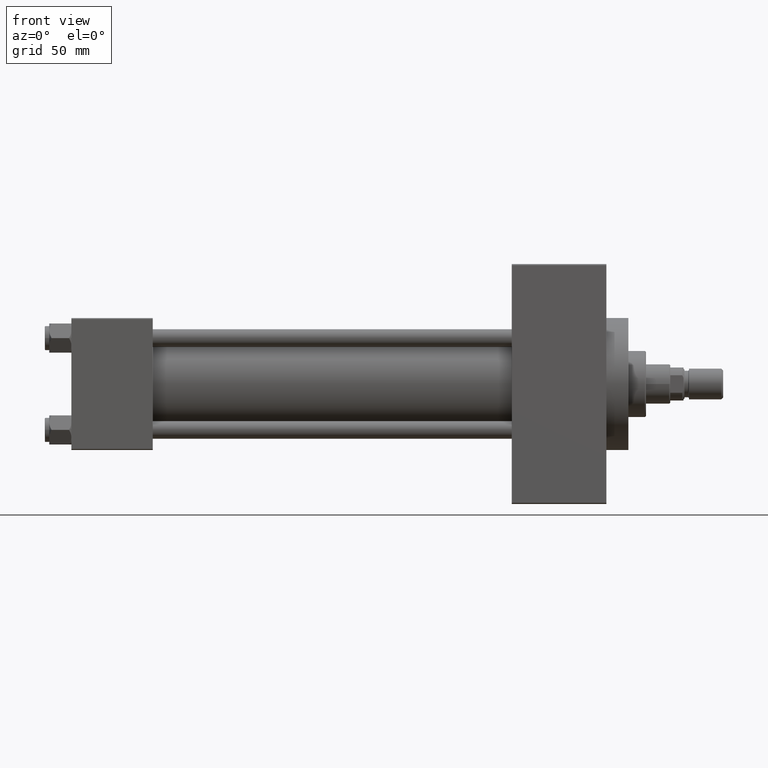
[diagram: clean part render]
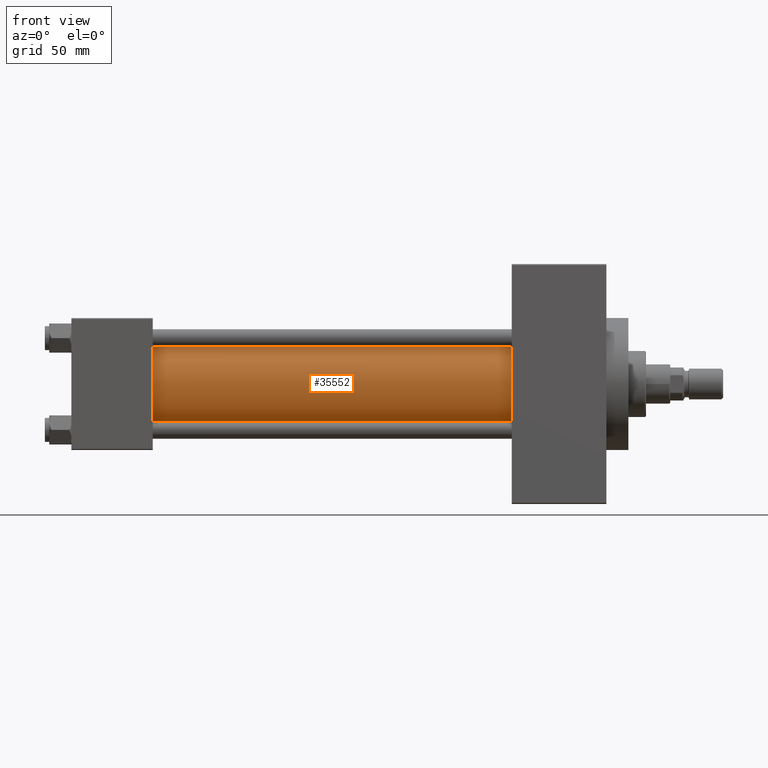
[diagram: same view with one face highlighted and labeled with its STEP entity id]
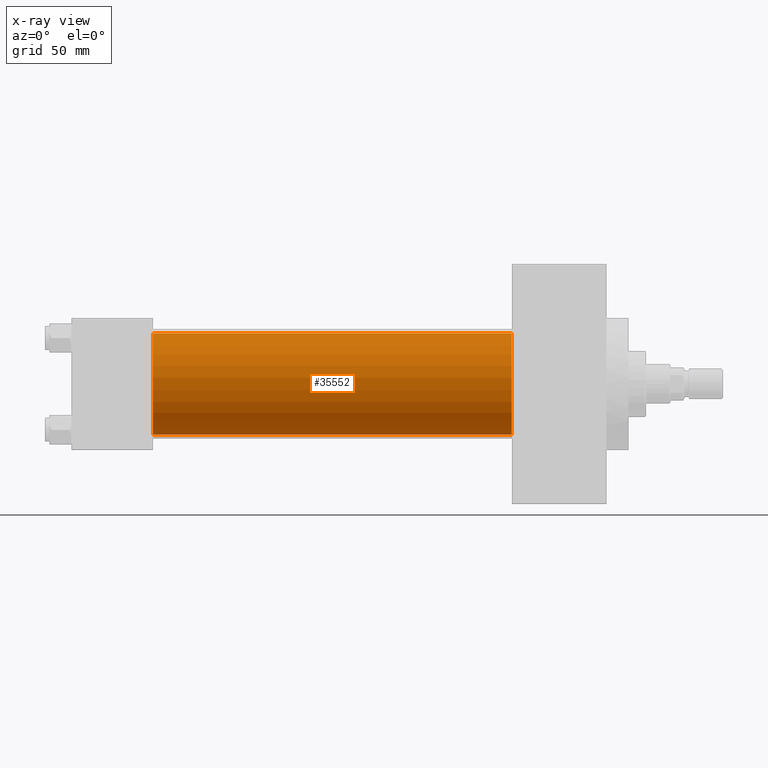
[diagram: x-ray of the same camera — body ghosted, the highlighted face saturated]
A machine part, front view. The second image highlights one B-rep face of the part: STEP entity #35552.
The next image is the same camera in x-ray: the body ghosted, the highlighted face saturated — about 0% of this face is hidden behind the body in this view.
In plain terms, the highlighted cylindrical surface (partial cylindrical patch) has radius 23 mm, axis along (-1, -0, -0).
Its self-contained STEP definition (entity closure, byte-faithful):
#3420 = CARTESIAN_POINT ( 'NONE',  ( 37.00000000000000711, -2.602085213965210642E-15, 0.000000000000000000 ) ) ;
#3929 = VERTEX_POINT ( 'NONE', #35302 ) ;
#4826 = EDGE_CURVE ( 'NONE', #33932, #15929, #13238, .T. ) ;
#5078 = DIRECTION ( 'NONE',  ( 0.000000000000000000, 0.000000000000000000, -1.000000000000000000 ) ) ;
#5286 = ORIENTED_EDGE ( 'NONE', *, *, #30888, .T. ) ;
#5329 = CARTESIAN_POINT ( 'NONE',  ( 200.0000000000000000, 2.146024240737016609E-16, -23.00000000000000000 ) ) ;
#5658 = CIRCLE ( 'NONE', #32748, 23.00000000000000000 ) ;
#6043 = EDGE_CURVE ( 'NONE', #3929, #15929, #44828, .T. ) ;
#6731 = AXIS2_PLACEMENT_3D ( 'NONE', #11680, #18960, #30324 ) ;
#8963 = CARTESIAN_POINT ( 'NONE',  ( 200.0000000000000000, -2.602085213965210642E-15, 0.000000000000000000 ) ) ;
#10615 = EDGE_CURVE ( 'NONE', #26112, #3929, #5658, .T. ) ;
#11640 = DIRECTION ( 'NONE',  ( -1.000000000000000000, -0.000000000000000000, -0.000000000000000000 ) ) ;
#11680 = CARTESIAN_POINT ( 'NONE',  ( 200.0000000000000000, -2.602085213965210642E-15, 0.000000000000000000 ) ) ;
#13238 = CIRCLE ( 'NONE', #14777, 23.00000000000000000 ) ;
#14196 = CARTESIAN_POINT ( 'NONE',  ( 37.00000000000000711, 2.146024240737016609E-16, -23.00000000000000000 ) ) ;
#14638 = ORIENTED_EDGE ( 'NONE', *, *, #6043, .F. ) ;
#14777 = AXIS2_PLACEMENT_3D ( 'NONE', #3420, #21833, #18208 ) ;
#15929 = VERTEX_POINT ( 'NONE', #14196 ) ;
#16587 = CARTESIAN_POINT ( 'NONE',  ( 37.00000000000000711, -2.602085213965210642E-15, 23.00000000000000000 ) ) ;
#17214 = ORIENTED_EDGE ( 'NONE', *, *, #4826, .T. ) ;
#17299 = LINE ( 'NONE', #32066, #42113 ) ;
#18208 = DIRECTION ( 'NONE',  ( 0.000000000000000000, 0.000000000000000000, 1.000000000000000000 ) ) ;
#18960 = DIRECTION ( 'NONE',  ( -1.000000000000000000, -0.000000000000000000, -0.000000000000000000 ) ) ;
#21833 = DIRECTION ( 'NONE',  ( 1.000000000000000000, -0.000000000000000000, 0.000000000000000000 ) ) ;
#24994 = EDGE_LOOP ( 'NONE', ( #14638, #46899, #5286, #17214 ) ) ;
#26112 = VERTEX_POINT ( 'NONE', #37852 ) ;
#26475 = FACE_OUTER_BOUND ( 'NONE', #24994, .T. ) ;
#30089 = CYLINDRICAL_SURFACE ( 'NONE', #6731, 23.00000000000000000 ) ;
#30324 = DIRECTION ( 'NONE',  ( 0.000000000000000000, 0.000000000000000000, 1.000000000000000000 ) ) ;
#30888 = EDGE_CURVE ( 'NONE', #26112, #33932, #17299, .T. ) ;
#32066 = CARTESIAN_POINT ( 'NONE',  ( 200.0000000000000000, -2.602085213965210642E-15, 23.00000000000000000 ) ) ;
#32748 = AXIS2_PLACEMENT_3D ( 'NONE', #8963, #38744, #5078 ) ;
#33932 = VERTEX_POINT ( 'NONE', #16587 ) ;
#35302 = CARTESIAN_POINT ( 'NONE',  ( 200.0000000000000000, 2.146024240737016609E-16, -23.00000000000000000 ) ) ;
#35460 = DIRECTION ( 'NONE',  ( -1.000000000000000000, -0.000000000000000000, -0.000000000000000000 ) ) ;
#35552 = ADVANCED_FACE ( 'NONE', ( #26475 ), #30089, .T. ) ;
#37852 = CARTESIAN_POINT ( 'NONE',  ( 200.0000000000000000, -2.602085213965210642E-15, 23.00000000000000000 ) ) ;
#38744 = DIRECTION ( 'NONE',  ( 1.000000000000000000, 0.000000000000000000, 0.000000000000000000 ) ) ;
#42113 = VECTOR ( 'NONE', #35460, 1000.000000000000000 ) ;
#44828 = LINE ( 'NONE', #5329, #46539 ) ;
#46539 = VECTOR ( 'NONE', #11640, 1000.000000000000000 ) ;
#46899 = ORIENTED_EDGE ( 'NONE', *, *, #10615, .F. ) ;